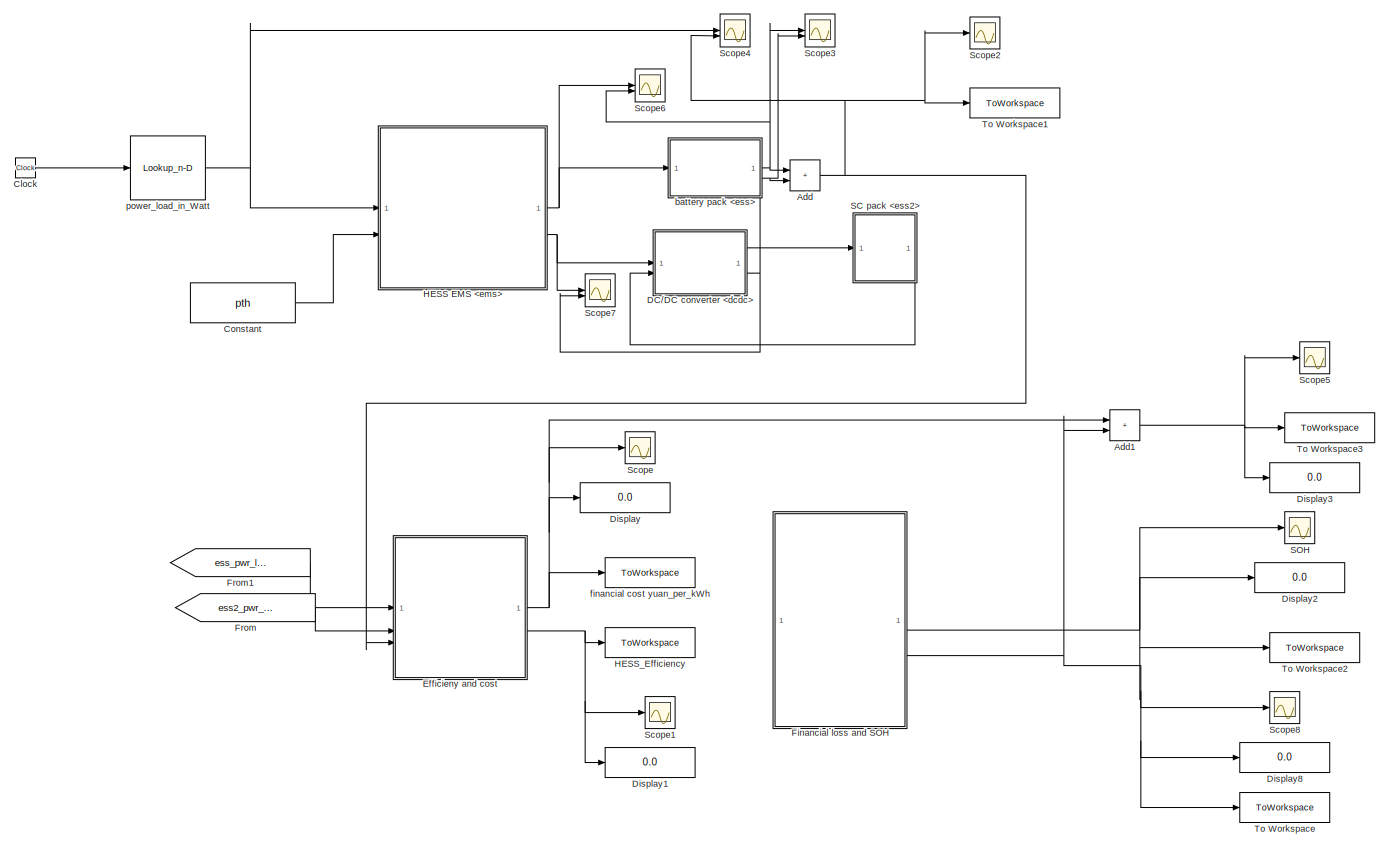
[diagram: root canvas - part 1/1, most of the canvas]
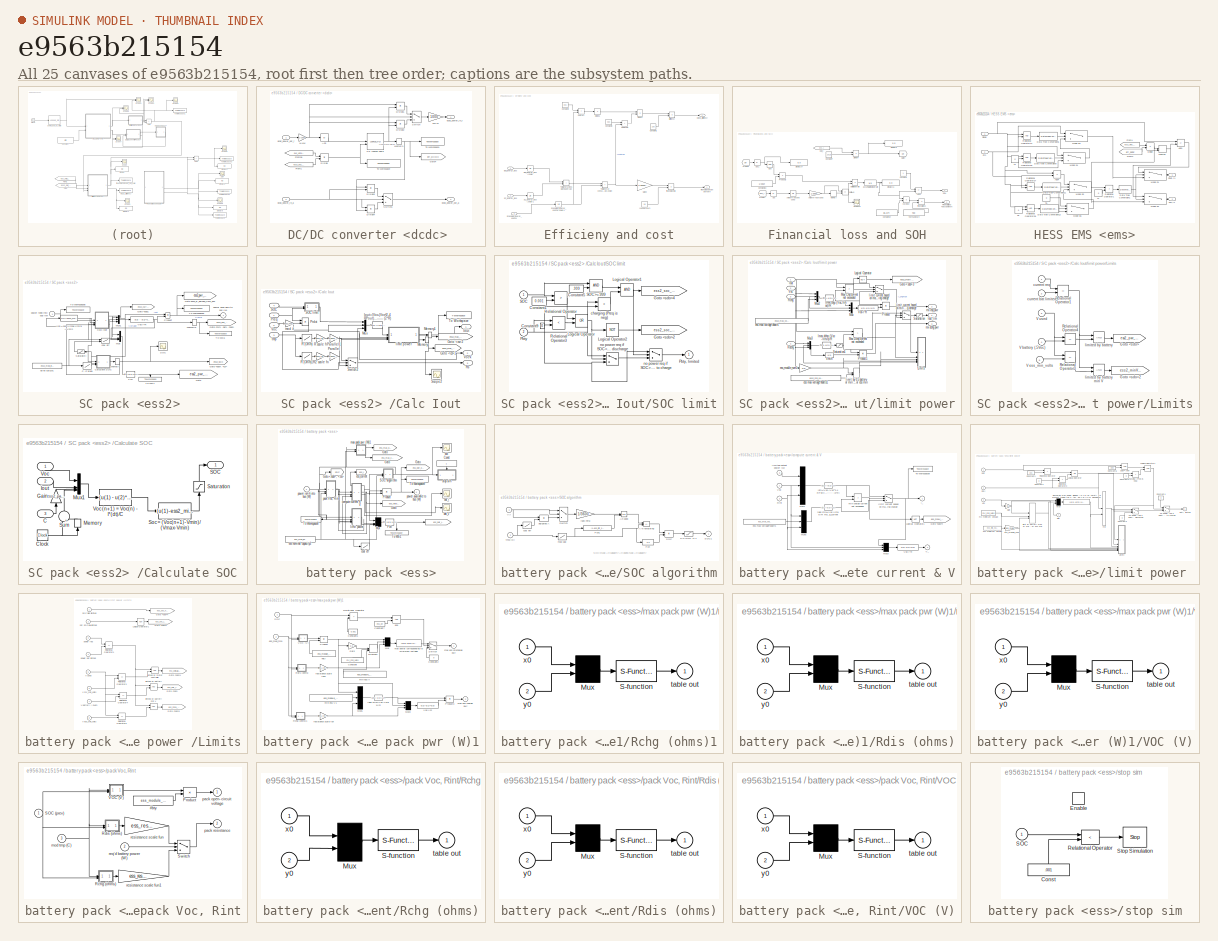
[diagram: thumbnail index - all 25 canvases of the model, root first then tree order]
MODEL slx_e9563b215154
KIND model
CONFIG AbsTol = 1e-3
CONFIG EnableMultiTasking = off
CONFIG FixedStep = 0.1
CONFIG MaxStep = 1
CONFIG MinStep = auto
CONFIG RelTol = 1e-3
CONFIG SampleTimeConstraint = Unconstrained
CONFIG SolverName = ode1
CONFIG StartTime = 0.0
CONFIG StopTime = 1369
BLOCK [Sum] Add
  IconShape = rectangular
BLOCK [Sum] Add1
  IconShape = rectangular
BLOCK [Clock] Clock
  Decimation = 1369
BLOCK [Constant] Constant
  Value = pth
BLOCK [SubSystem] DC//DC converter <dcdc> 
  AncestorBlock = lib_energy_storage/Ess Choices/DC//DC <dcdc>\nEff model \nwithout electrical presentations
  ShowPortLabels = none
BLOCK [Outport] DC//DC converter <dcdc> / dcdc_power_in_r 
BLOCK [Outport] DC//DC converter <dcdc> / dcdc_power_out_a
  Port = 2
BLOCK [Lookup_n-D] DC//DC converter <dcdc> /2-D Lookup Table
  BreakpointsForDimension1 = [0,20,40,60,80,360]
  BreakpointsForDimension2 = [0,0.2,0.4,0.6,0.8,1]
  InputPortMap = u0,u1
  RndMeth = Simplest
  Table = reshape([0.8,0.945,0.94,0.938,0.934,0.934,0.8,0.945,0.94,0.938,0.934,0.934,0.8,0.952,0.95,0.946,0.944,0.944,0.8,0.965,0.957,0.952,0.95,0.95,0.8,0.972,0.965,0.962,0.96,0.96,0.8,0.977,0.97,0.964,0.962,0.962],6,6)
BLOCK [Abs] DC//DC converter <dcdc> /Abs
  SaturateOnIntegerOverflow = off
BLOCK [Product] DC//DC converter <dcdc> /Divide
  Inputs = /*
BLOCK [Product] DC//DC converter <dcdc> /Divide1
  Inputs = */
BLOCK [Product] DC//DC converter <dcdc> /Divide2
  Inputs = **
BLOCK [Product] DC//DC converter <dcdc> /Divide3
  Inputs = **
BLOCK [Product] DC//DC converter <dcdc> /Divide4
  Inputs = */
BLOCK [From] DC//DC converter <dcdc> /From1
  GotoTag = ess2_bus_voltage
  TagVisibility = global
BLOCK [From] DC//DC converter <dcdc> /From28
  GotoTag = bus_voltage
  TagVisibility = global
BLOCK [Goto] DC//DC converter <dcdc> /Goto4
  GotoTag = Eff_DCDC
  TagVisibility = global
BLOCK [Memory] DC//DC converter <dcdc> /Memory1
  InitialCondition = 0.95
  NameLocation = top
BLOCK [Switch] DC//DC converter <dcdc> /Switch
  InputSameDT = off
  SaturateOnIntegerOverflow = off
BLOCK [Switch] DC//DC converter <dcdc> /Switch1
  InputSameDT = off
  SaturateOnIntegerOverflow = off
BLOCK [ToWorkspace] DC//DC converter <dcdc> /To Workspace
  MaxDataPoints = inf
  SampleTime = -1
  SaveFormat = Timeseries
  VariableName = ess2_to_ess_volt_ratio
BLOCK [ToWorkspace] DC//DC converter <dcdc> /To Workspace1
  MaxDataPoints = inf
  SampleTime = -1
  SaveFormat = Timeseries
  VariableName = eff_DCDC
BLOCK [Gain] DC//DC converter <dcdc> /W-kW
  Gain = 1/1000
BLOCK [Inport] DC//DC converter <dcdc> /dcdc_power_in_a
  Port = 2
BLOCK [Inport] DC//DC converter <dcdc> /dcdc_power_out_r
BLOCK [Gain] DC//DC converter <dcdc> /kW-W
  Gain = 1000
BLOCK [Display] Display
  Decimation = 1
BLOCK [Display] Display1
  Decimation = 1
BLOCK [Display] Display2
  Decimation = 1
BLOCK [Display] Display3
  Decimation = 1
BLOCK [Display] Display8
  Decimation = 1
BLOCK [SubSystem] Efficieny and cost
BLOCK [Outport] Efficieny and cost/ financial cost yuan per kWh
BLOCK [Inport] Efficieny and cost/Bat_Energy_loss 
BLOCK [Integrator] Efficieny and cost/Bat_Energy_loss (Joule)
BLOCK [Constant] Efficieny and cost/Constant1
  Value = 100
BLOCK [Constant] Efficieny and cost/Constant2
  Value = eps
BLOCK [Constant] Efficieny and cost/Constant3
  Value = eps
BLOCK [Product] Efficieny and cost/Divide1
  Inputs = /
BLOCK [Product] Efficieny and cost/Divide2
  Inputs = //
BLOCK [Product] Efficieny and cost/Efficiency
BLOCK [Gain] Efficieny and cost/Gain2
  Gain = 1/3600000
BLOCK [Outport] Efficieny and cost/HESS_Efficiency
  Port = 2
BLOCK [Inport] Efficieny and cost/SC_Energy_loss
  Port = 2
BLOCK [Integrator] Efficieny and cost/SC_Energy_loss (Joule)1
BLOCK [Inport] Efficieny and cost/Sc and Bat_Energy_useFul
  Port = 3
BLOCK [Integrator] Efficieny and cost/Sc and Bat_Energy_useFul (Joule)1
BLOCK [Sum] Efficieny and cost/Subtract
  IconShape = rectangular
BLOCK [Sum] Efficieny and cost/Subtract1
  IconShape = rectangular
BLOCK [Sum] Efficieny and cost/Total energy consumption Bat+ Supercap (Joule)
  IconShape = rectangular
BLOCK [Sum] Efficieny and cost/Total energy loss Bat+ Supercap
  IconShape = rectangular
BLOCK [Product] Efficieny and cost/financial costa
BLOCK [Constant] Efficieny and cost/yuan per kWh
  Value = 0.6
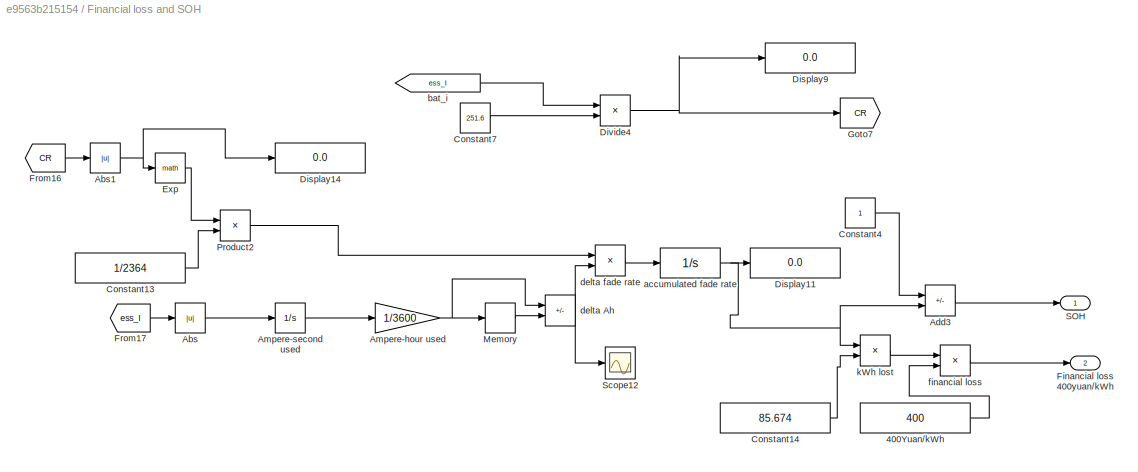
BLOCK [SubSystem] Financial loss and SOH
BLOCK [Constant] Financial loss and SOH/400Yuan//kWh
  Value = 400
BLOCK [Abs] Financial loss and SOH/Abs
  SaturateOnIntegerOverflow = off
BLOCK [Abs] Financial loss and SOH/Abs1
  SaturateOnIntegerOverflow = off
BLOCK [Sum] Financial loss and SOH/Add3
  IconShape = rectangular
  Inputs = +-
BLOCK [Gain] Financial loss and SOH/Ampere-hour used
  Gain = 1/3600
BLOCK [Integrator] Financial loss and SOH/Ampere-second used
BLOCK [Constant] Financial loss and SOH/Constant13
  Value = 1/2364
BLOCK [Constant] Financial loss and SOH/Constant14
  Value = 85.674
BLOCK [Constant] Financial loss and SOH/Constant4
BLOCK [Constant] Financial loss and SOH/Constant7
  Value = 251.6
BLOCK [Display] Financial loss and SOH/Display11
  Decimation = 1
BLOCK [Display] Financial loss and SOH/Display14
  Decimation = 1
BLOCK [Display] Financial loss and SOH/Display9
  Decimation = 1
BLOCK [Product] Financial loss and SOH/Divide4
  Inputs = */
BLOCK [Math] Financial loss and SOH/Exp
BLOCK [Outport] Financial loss and SOH/Financial loss 400yuan//kWh
  Port = 2
BLOCK [From] Financial loss and SOH/From16
  GotoTag = CR
BLOCK [From] Financial loss and SOH/From17
  GotoTag = ess_I
  TagVisibility = global
BLOCK [Goto] Financial loss and SOH/Goto7
  GotoTag = CR
BLOCK [Memory] Financial loss and SOH/Memory
BLOCK [Product] Financial loss and SOH/Product2
BLOCK [Outport] Financial loss and SOH/SOH
BLOCK [Scope] Financial loss and SOH/Scope12
  Floating = off
  NumInputPorts = 1
  ScopeSpecificationString = Simulink.scopes.TimeScopeBlockCfg('CurrentConfiguration', extmgr.ConfigurationSet(extmgr.Configuration('Core','General UI',true),extmgr.Configuration('Core','Source UI',true),extmgr.Configuration('Sources','WiredSimulink',true,'DataLoggingVariableName','ScopeData5'),extmgr.Configuration('Visuals','Time Domain',true,'SerializedDisplays',{struct('MinYLimReal','-0.00007','MaxYLimReal','0.00067','YLab...<+1531ch>
BLOCK [Integrator] Financial loss and SOH/accumulated fade rate
BLOCK [From] Financial loss and SOH/bat_i
  GotoTag = ess_I
  TagVisibility = global
BLOCK [Sum] Financial loss and SOH/delta Ah
  IconShape = rectangular
  Inputs = +-
BLOCK [Product] Financial loss and SOH/delta fade rate
BLOCK [Product] Financial loss and SOH/financial loss
BLOCK [Product] Financial loss and SOH/kWh lost
BLOCK [From] From
  GotoTag = ess2_pwr_loss_a
  TagVisibility = global
BLOCK [From] From1
  GotoTag = ess_pwr_loss_a
  TagVisibility = global
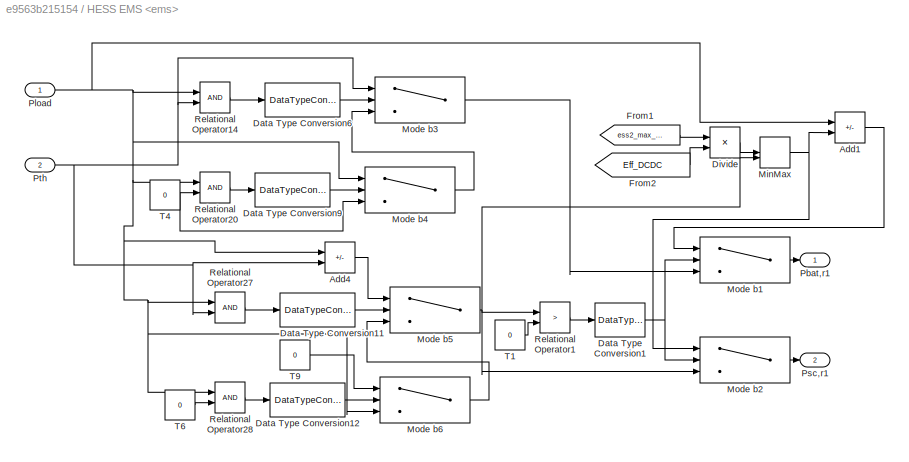
BLOCK [SubSystem] HESS EMS <ems>
  AncestorBlock = lib_controls/HESS Control Strategy\n<ems>\nLogic Threshold (BAT) CS2
  ShowPortLabels = none
BLOCK [Sum] HESS EMS <ems>/Add1
  IconShape = rectangular
  Inputs = +-
BLOCK [Sum] HESS EMS <ems>/Add4
  IconShape = rectangular
  Inputs = +-
BLOCK [DataTypeConversion] HESS EMS <ems>/Data Type Conversion1
  OutDataTypeStr = double
  RndMeth = Floor
  SaturateOnIntegerOverflow = off
BLOCK [DataTypeConversion] HESS EMS <ems>/Data Type Conversion11
  OutDataTypeStr = double
  RndMeth = Floor
  SaturateOnIntegerOverflow = off
BLOCK [DataTypeConversion] HESS EMS <ems>/Data Type Conversion12
  OutDataTypeStr = double
  RndMeth = Floor
  SaturateOnIntegerOverflow = off
BLOCK [DataTypeConversion] HESS EMS <ems>/Data Type Conversion6
  OutDataTypeStr = double
  RndMeth = Floor
  SaturateOnIntegerOverflow = off
BLOCK [DataTypeConversion] HESS EMS <ems>/Data Type Conversion9
  OutDataTypeStr = double
  RndMeth = Floor
  SaturateOnIntegerOverflow = off
BLOCK [Product] HESS EMS <ems>/Divide
  Inputs = **
BLOCK [From] HESS EMS <ems>/From1
  GotoTag = ess2_max_pwr
  TagVisibility = global
BLOCK [From] HESS EMS <ems>/From2
  GotoTag = Eff_DCDC
  TagVisibility = global
BLOCK [MinMax] HESS EMS <ems>/MinMax
  Inputs = 2
BLOCK [Switch] HESS EMS <ems>/Mode b1
  InputSameDT = off
  SaturateOnIntegerOverflow = off
  Threshold = 0.5
BLOCK [Switch] HESS EMS <ems>/Mode b2
  InputSameDT = off
  SaturateOnIntegerOverflow = off
  Threshold = 0.5
BLOCK [Switch] HESS EMS <ems>/Mode b3
  InputSameDT = off
  SaturateOnIntegerOverflow = off
  Threshold = 0.5
BLOCK [Switch] HESS EMS <ems>/Mode b4
  InputSameDT = off
  SaturateOnIntegerOverflow = off
  Threshold = 0.5
BLOCK [Switch] HESS EMS <ems>/Mode b5
  InputSameDT = off
  SaturateOnIntegerOverflow = off
  Threshold = 0.5
BLOCK [Switch] HESS EMS <ems>/Mode b6
  InputSameDT = off
  SaturateOnIntegerOverflow = off
  Threshold = 0.5
BLOCK [Outport] HESS EMS <ems>/Pbat,r1
  LockScale = on
  PortDimensions = 1
  VarSizeSig = No
BLOCK [Inport] HESS EMS <ems>/Pload
BLOCK [Outport] HESS EMS <ems>/Psc,r1
  Port = 2
  PortDimensions = 1
  VarSizeSig = No
BLOCK [Inport] HESS EMS <ems>/Pth
  Port = 2
BLOCK [RelationalOperator] HESS EMS <ems>/Relational Operator1
  InputSameDT = off
  Operator = >
  OutDataTypeStr = boolean
BLOCK [RelationalOperator] HESS EMS <ems>/Relational Operator14
  InputSameDT = off
  OutDataTypeStr = boolean
BLOCK [RelationalOperator] HESS EMS <ems>/Relational Operator20
  InputSameDT = off
  OutDataTypeStr = boolean
BLOCK [RelationalOperator] HESS EMS <ems>/Relational Operator27
  InputSameDT = off
  OutDataTypeStr = boolean
BLOCK [RelationalOperator] HESS EMS <ems>/Relational Operator28
  InputSameDT = off
  OutDataTypeStr = boolean
BLOCK [Constant] HESS EMS <ems>/T1
  Value = 0
BLOCK [Constant] HESS EMS <ems>/T4
  Value = 0
BLOCK [Constant] HESS EMS <ems>/T6
  Value = 0
BLOCK [Constant] HESS EMS <ems>/T9
  Value = 0
BLOCK [ToWorkspace] HESS_Efficiency
  FixptAsFi = on
  MaxDataPoints = inf
  SampleTime = -1
  SaveFormat = Timeseries
  VariableName = simout1
BLOCK [SubSystem] SC pack <ess2> 
  AncestorBlock = lib_energy_storage/Ess Choices/Ultracapacitor\n System\n<uc>\nCapLoss&Cost
  ShowPortLabels = none
BLOCK [Lookup] SC pack <ess2> /C (Farad)
  InputValues = ess2_tmp
  Table = ess2_cap
BLOCK [SubSystem] SC pack <ess2> /Calc Iout
BLOCK [Goto] SC pack <ess2> /Calc Iout/Goto <cs>1
  GotoTag = ess2_max_pwr
  TagVisibility = global
BLOCK [Goto] SC pack <ess2> /Calc Iout/Goto <cs>2
  GotoTag = ess2_max_chg_pwr
  TagVisibility = global
BLOCK [Outport] SC pack <ess2> /Calc Iout/Iout
BLOCK [Fcn] SC pack <ess2> /Calc Iout/Iout=(Voc-(Voc^2-4RPout)^.5) ----------------------------- (2*R)
  Expr = (u[2]-(((u[2]^2-4*u[1]*u[3])>0)*(u[2]^2-4*u[1]*u[3]))^.5)/(2*u[3])
  NameLocation = top
BLOCK [Memory] SC pack <ess2> /Calc Iout/Memory
BLOCK [Memory] SC pack <ess2> /Calc Iout/Memory1
BLOCK [Mux] SC pack <ess2> /Calc Iout/Mux
  DisplayOption = bar
  Inputs = 3
BLOCK [Gain] SC pack <ess2> /Calc Iout/Parallel
  Gain = 1/ess2_parallel_mod_num
  OutDataTypeStr = Inherit: Same as input
  ParamDataTypeStr = Inherit: Same as input
  SaturateOnIntegerOverflow = on
BLOCK [Gain] SC pack <ess2> /Calc Iout/Parallel1
  Gain = 1/ess2_parallel_mod_num
  OutDataTypeStr = Inherit: Same as input
  ParamDataTypeStr = Inherit: Same as input
  SaturateOnIntegerOverflow = on
BLOCK [Product] SC pack <ess2> /Calc Iout/Prdct
  InputSameDT = on
  Inputs = */
  OutDataTypeStr = Inherit: Same as first input
  RndMeth = Zero
  SaturateOnIntegerOverflow = on
BLOCK [Inport] SC pack <ess2> /Calc Iout/Preq
BLOCK [Lookup] SC pack <ess2> /Calc Iout/R (Ohm)
  InputValues = ess2_tmp
  Table = ess2_r
BLOCK [Lookup] SC pack <ess2> /Calc Iout/R (Ohm)1
  InputValues = ess2_tmp
  Table = ess2_r
BLOCK [Gain] SC pack <ess2> /Calc Iout/R scale fn
  Gain = ess2_res_scale_fun(ess2_res_scale_coef,ess2_module_num,ess2_cap_scale)
  OutDataTypeStr = Inherit: Same as input
  ParamDataTypeStr = Inherit: Same as input
  SaturateOnIntegerOverflow = on
BLOCK [Gain] SC pack <ess2> /Calc Iout/R2 scale fn
  Gain = ess2_res_scale_fun(ess2_res_scale_coef,ess2_module_num,ess2_cap_scale)
  OutDataTypeStr = Inherit: Same as input
  ParamDataTypeStr = Inherit: Same as input
  SaturateOnIntegerOverflow = on
BLOCK [Outport] SC pack <ess2> /Calc Iout/Rs
  Port = 3
BLOCK [Inport] SC pack <ess2> /Calc Iout/SOC
  Port = 4
BLOCK [SubSystem] SC pack <ess2> /Calc Iout/SOC limit
  ShowPortLabels = none
BLOCK [Constant] SC pack <ess2> /Calc Iout/SOC limit/Constant1
  Value = 0.001
BLOCK [Constant] SC pack <ess2> /Calc Iout/SOC limit/Constant5
  Value = .999
BLOCK [Constant] SC pack <ess2> /Calc Iout/SOC limit/Constant9
  Value = 0
BLOCK [Goto] SC pack <ess2> /Calc Iout/SOC limit/Goto <sdo>2
  GotoTag = ess2_soc_low_limited
  TagVisibility = global
BLOCK [Goto] SC pack <ess2> /Calc Iout/SOC limit/Goto <sdo>4
  GotoTag = ess2_soc_hi_limited
  TagVisibility = global
BLOCK [Logic] SC pack <ess2> /Calc Iout/SOC limit/Logical Operator
  Operator = OR
BLOCK [Logic] SC pack <ess2> /Calc Iout/SOC limit/Logical Operator1
BLOCK [Logic] SC pack <ess2> /Calc Iout/SOC limit/Logical Operator2
  Inputs = 1
  Operator = NOT
BLOCK [Inport] SC pack <ess2> /Calc Iout/SOC limit/Pbty
  Port = 2
BLOCK [Outport] SC pack <ess2> /Calc Iout/SOC limit/Pbty, limited
  InitialOutput = 0
BLOCK [RelationalOperator] SC pack <ess2> /Calc Iout/SOC limit/Relational Operator
  Operator = >
BLOCK [RelationalOperator] SC pack <ess2> /Calc Iout/SOC limit/Relational Operator3
  NameLocation = top
  Operator = <
BLOCK [Inport] SC pack <ess2> /Calc Iout/SOC limit/SOC
BLOCK [RelationalOperator] SC pack <ess2> /Calc Iout/SOC limit/SOC>=.999
BLOCK [RelationalOperator] SC pack <ess2> /Calc Iout/SOC limit/charging (Preq is neg)
  Operator = <
BLOCK [Switch] SC pack <ess2> /Calc Iout/SOC limit/no power req if SOC<0 and trying to discharge
  Threshold = eps
BLOCK [Switch] SC pack <ess2> /Calc Iout/SOC limit/no power req if SOC>.999 and trying to charge
  Threshold = eps
BLOCK [Scope] SC pack <ess2> /Calc Iout/Scope2
  Floating = off
  NumInputPorts = 1
  ScopeSpecificationString = Simulink.scopes.TimeScopeBlockCfg('CurrentConfiguration', extmgr.ConfigurationSet(extmgr.Configuration('Core','General UI',true),extmgr.Configuration('Core','Source UI',true),extmgr.Configuration('Sources','WiredSimulink',true,'DataLoggingVariableName','ScopeData8','DataLoggingSaveFormat','StructureWithTime','DataLoggingLimitDataPoints',true,'DataLoggingDecimation','1','DataLoggingDecimateData',tr...<+1853ch>
BLOCK [Switch] SC pack <ess2> /Calc Iout/Switch2
BLOCK [ToWorkspace] SC pack <ess2> /Calc Iout/To Workspace
  MaxDataPoints = inf
  SampleTime = -1
  VariableName = ess2_current
BLOCK [Inport] SC pack <ess2> /Calc Iout/Voc
  Port = 2
BLOCK [Outport] SC pack <ess2> /Calc Iout/Voc*k
  Port = 2
BLOCK [SubSystem] SC pack <ess2> /Calc Iout/limit power
BLOCK [Goto] SC pack <ess2> /Calc Iout/limit power/Goto <sdo>3
  GotoTag = ess2_maxV_limited
  TagVisibility = global
BLOCK [Fcn] SC pack <ess2> /Calc Iout/limit power/Imax chg=(Voc-Vmax)//R
  Expr = (u(1)-u(3))/u(2)
BLOCK [Fcn] SC pack <ess2> /Calc Iout/limit power/Imax dchg=(Voc -Vmin)//R
  Expr = (u(3)-u(2))/u(1)
BLOCK [Inport] SC pack <ess2> /Calc Iout/limit power/Iout
BLOCK [Outport] SC pack <ess2> /Calc Iout/limit power/Iout_lim
BLOCK [SubSystem] SC pack <ess2> /Calc Iout/limit power/Limits
  ShowPortLabels = none
BLOCK [Goto] SC pack <ess2> /Calc Iout/limit power/Limits/Goto <sdo>
  GotoTag = ess2_pwr_limited
  TagVisibility = global
BLOCK [Goto] SC pack <ess2> /Calc Iout/limit power/Limits/Goto <sdo>2
  GotoTag = ess2_minV_limited
  TagVisibility = global
BLOCK [RelationalOperator] SC pack <ess2> /Calc Iout/limit power/Limits/Relational Operator1
  Operator = ==
BLOCK [RelationalOperator] SC pack <ess2> /Calc Iout/limit power/Limits/Relational Operator4
  Operator = ==
BLOCK [RelationalOperator] SC pack <ess2> /Calc Iout/limit power/Limits/Relational Operator5
  Operator = <=
BLOCK [Inport] SC pack <ess2> /Calc Iout/limit power/Limits/V battery (.5Voc)
  Port = 4
BLOCK [Inport] SC pack <ess2> /Calc Iout/limit power/Limits/V ess_min_volts
  Port = 5
BLOCK [Inport] SC pack <ess2> /Calc Iout/limit power/Limits/V used
  Port = 3
BLOCK [Inport] SC pack <ess2> /Calc Iout/limit power/Limits/current bat limited
  Port = 2
BLOCK [Inport] SC pack <ess2> /Calc Iout/limit power/Limits/current req
BLOCK [Logic] SC pack <ess2> /Calc Iout/limit power/Limits/limited by battery
BLOCK [Logic] SC pack <ess2> /Calc Iout/limit power/Limits/limited by battery min V
BLOCK [Logic] SC pack <ess2> /Calc Iout/limit power/Logical Operator
  Operator = NOT
BLOCK [RelationalOperator] SC pack <ess2> /Calc Iout/limit power/Max Chg current not exceeded
  Operator = >
BLOCK [RelationalOperator] SC pack <ess2> /Calc Iout/limit power/Max Dchg current not exceeded
  Operator = >
BLOCK [Mux] SC pack <ess2> /Calc Iout/limit power/Mux
  DisplayOption = bar
  Inputs = 3
BLOCK [Mux] SC pack <ess2> /Calc Iout/limit power/Mux2
  DisplayOption = bar
  Inputs = 3
BLOCK [Mux] SC pack <ess2> /Calc Iout/limit power/Mux3
  DisplayOption = bar
  Inputs = 3
BLOCK [Product] SC pack <ess2> /Calc Iout/limit power/Product
  InputSameDT = on
  OutDataTypeStr = Inherit: Same as first input
  RndMeth = Zero
  SaturateOnIntegerOverflow = on
BLOCK [Product] SC pack <ess2> /Calc Iout/limit power/Product1
  InputSameDT = on
  OutDataTypeStr = Inherit: Same as first input
  RndMeth = Zero
  SaturateOnIntegerOverflow = on
BLOCK [Inport] SC pack <ess2> /Calc Iout/limit power/Rchg
  Port = 3
BLOCK [Inport] SC pack <ess2> /Calc Iout/limit power/Rdchg
  Port = 4
BLOCK [Saturate] SC pack <ess2> /Calc Iout/limit power/Saturation
  LowerLimit = -2600*ess2_parallel_mod_num
  UpperLimit = 2600*ess2_parallel_mod_num
BLOCK [Saturate] SC pack <ess2> /Calc Iout/limit power/Saturation1
  LowerLimit = 0
  UpperLimit = inf
BLOCK [Fcn] SC pack <ess2> /Calc Iout/limit power/Vmin
  Expr = u(2)
BLOCK [Inport] SC pack <ess2> /Calc Iout/limit power/Voc
  Port = 2
BLOCK [Fcn] SC pack <ess2> /Calc Iout/limit power/Voc-I*R
  Expr = u(3)-u(1)*u(2)
BLOCK [Constant] SC pack <ess2> /Calc Iout/limit power/ess max voltage*#batts
  Value = ess2_max_volts*ess2_module_num
BLOCK [Constant] SC pack <ess2> /Calc Iout/limit power/ess max voltage*#batts1
  Value = ess2_min_volts*ess2_module_num
BLOCK [Gain] SC pack <ess2> /Calc Iout/limit power/ess_module_num1
  Gain = 0.5
  OutDataTypeStr = Inherit: Same as input
  ParamDataTypeStr = Inherit: Same as input
  SaturateOnIntegerOverflow = on
BLOCK [MinMax] SC pack <ess2> /Calc Iout/limit power/limit by 0.5 battery or min mc voltage or ess min
  Function = max
  InputSameDT = on
  Inputs = 2
  SaturateOnIntegerOverflow = on
BLOCK [Switch] SC pack <ess2> /Calc Iout/limit power/limit current based on max voltage during charge
  Threshold = 0.5
BLOCK [Switch] SC pack <ess2> /Calc Iout/limit power/limit current based on min voltage during dcharge
  Threshold = 0.5
BLOCK [Outport] SC pack <ess2> /Calc Iout/limit power/mx chg pwr
  Port = 2
BLOCK [Outport] SC pack <ess2> /Calc Iout/limit power/mx dchg pwr
  Port = 3
BLOCK [Gain] SC pack <ess2> /Calc Iout/mod #
  Gain = ess2_module_num
  OutDataTypeStr = Inherit: Same as input
  ParamDataTypeStr = Inherit: Same as input
  SaturateOnIntegerOverflow = on
BLOCK [Inport] SC pack <ess2> /Calc Iout/tmp
  Port = 3
BLOCK [SubSystem] SC pack <ess2> /Calculate SOC
BLOCK [Inport] SC pack <ess2> /Calculate SOC/C
  Port = 3
BLOCK [Clock] SC pack <ess2> /Calculate SOC/Clock
BLOCK [Gain] SC pack <ess2> /Calculate SOC/Gain
  Gain = ess2_parallel_mod_num
  NameLocation = left
  OutDataTypeStr = Inherit: Same as input
  ParamDataTypeStr = Inherit: Same as input
  SaturateOnIntegerOverflow = on
BLOCK [Inport] SC pack <ess2> /Calculate SOC/Iout
  Port = 2
BLOCK [Memory] SC pack <ess2> /Calculate SOC/Memory
  NameLocation = right
BLOCK [Mux] SC pack <ess2> /Calculate SOC/Mux1
  DisplayOption = bar
BLOCK [Outport] SC pack <ess2> /Calculate SOC/SOC
BLOCK [Saturate] SC pack <ess2> /Calculate SOC/Saturation
  LowerLimit = 0
  NameLocation = left
  UpperLimit = 1
BLOCK [Fcn] SC pack <ess2> /Calculate SOC/Soc = (Voc(n+1)-Vmin)//(Vmax-Vmin)
  Expr = (u(1)-ess2_min_volts)/(ess2_max_volts-ess2_min_volts)
BLOCK [Sum] SC pack <ess2> /Calculate SOC/Sum
  InputSameDT = on
  Inputs = |+-
  NameLocation = right
  OutDataTypeStr = Inherit: Same as first input
  SaturateOnIntegerOverflow = on
BLOCK [Inport] SC pack <ess2> /Calculate SOC/Voc
  NameLocation = right
BLOCK [Fcn] SC pack <ess2> /Calculate SOC/Voc (n+1) = Voc(n) - I*(dt)//C
  Expr = (u(1) - u(2)*u(4)/u(3))
BLOCK [Fcn] SC pack <ess2> /Fcn
  Expr = u[1]*u[1]*u[2]/ess2_parallel_mod_num*(u[1]>=0)+u[1]*u[1]*u(4)*u(4)*u[2]/ess2_parallel_mod_num*(u[1]<0)-u[1]*u[3]*(1-u(4))*(u[1]<0)
BLOCK [Goto] SC pack <ess2> /Goto
  GotoTag = ess2_pwr_loss_a
  TagVisibility = global
BLOCK [Goto] SC pack <ess2> /Goto <mc>, <gc>, <sdo>
  GotoTag = ess2_bus_voltage
  TagVisibility = global
BLOCK [Goto] SC pack <ess2> /Goto <sdo1
  GotoTag = ess2_current
  TagVisibility = global
BLOCK [Goto] SC pack <ess2> /Goto <sdo>, <cs>
  GotoTag = ess2_SOC
  TagVisibility = global
BLOCK [Goto] SC pack <ess2> /Goto ess2_E_gained_from_ess
  GotoTag = ess2_pwr_out_a
  TagVisibility = global
BLOCK [Memory] SC pack <ess2> /Memory
  InitialCondition = ess2_init_soc
BLOCK [Memory] SC pack <ess2> /Memory3
  InitialCondition = (ess2_init_soc*(ess2_max_volts-ess2_min_volts) +ess2_min_volts)*ess2_module_num
BLOCK [Mux] SC pack <ess2> /Mux
  DisplayOption = bar
BLOCK [Mux] SC pack <ess2> /Mux1
  DisplayOption = bar
  Inputs = 3
BLOCK [Product] SC pack <ess2> /Product
  InputSameDT = on
  OutDataTypeStr = Inherit: Same as first input
  RndMeth = Zero
  SaturateOnIntegerOverflow = on
BLOCK [Scope] SC pack <ess2> /SOC
  Floating = off
  NumInputPorts = 1
  ScopeSpecificationString = Simulink.scopes.TimeScopeBlockCfg('CurrentConfiguration', extmgr.ConfigurationSet(extmgr.Configuration('Core','General UI',true),extmgr.Configuration('Core','Source UI',true),extmgr.Configuration('Sources','WiredSimulink',true,'DataLoggingVariableName','ScopeData4'),extmgr.Configuration('Visuals','Time Domain',true,'SerializedDisplays',{struct('MinYLimReal','0.06706','MaxYLimReal','1.10366','YLabe...<+1508ch>
BLOCK [Saturate] SC pack <ess2> /Saturate I
  LowerLimit = -2600
  UpperLimit = 2600
BLOCK [ToWorkspace] SC pack <ess2> /To WS1
  MaxDataPoints = inf
  NameLocation = left
  VariableName = ess2_pwr_loss_a
BLOCK [ToWorkspace] SC pack <ess2> /To WS5
  MaxDataPoints = inf
  NameLocation = top
  VariableName = ess2_voltage
BLOCK [ToWorkspace] SC pack <ess2> /To Workspace8
  MaxDataPoints = inf
  NameLocation = top
  SampleTime = -1
  VariableName = ess2_pwr_out_r
BLOCK [ToWorkspace] SC pack <ess2> /To Workspace9
  MaxDataPoints = inf
  NameLocation = top
  SampleTime = -1
  VariableName = ess2_pwr_out_a
BLOCK [Fcn] SC pack <ess2> /Voc = soc*(Vmax-Vmin) + Vmin
  Expr = u(1)*(ess2_max_volts-ess2_min_volts) +ess2_min_volts
BLOCK [Fcn] SC pack <ess2> /Voc-I*R
  Expr = u[2] - u[1]*u[3]
BLOCK [Lookup2D] SC pack <ess2> /coul eff
  ColumnIndex = ess2_i
  RowIndex = ess2_tmp
  Table = ess2_coulombic_eff
BLOCK [Constant] SC pack <ess2> /do ex calcs?1
  Value = ess2_mod_init_tmp
BLOCK [Outport] SC pack <ess2> /power available to bus (W)
  InitialOutput = 0
  NameLocation = top
BLOCK [Inport] SC pack <ess2> /power req'd into bus (W)
  NameLocation = top
BLOCK [Scope] SOH
  Floating = off
  NumInputPorts = 1
  ScopeSpecificationString = Simulink.scopes.TimeScopeBlockCfg('CurrentConfiguration', extmgr.ConfigurationSet(extmgr.Configuration('Core','General UI',true),extmgr.Configuration('Core','Source UI',true),extmgr.Configuration('Sources','WiredSimulink',true,'DataLoggingVariableName','ScopeData2'),extmgr.Configuration('Visuals','Time Domain',true,'SerializedDisplays',{struct('MinYLimReal','0.99976','MaxYLimReal','1.00003','YLabe...<+1545ch>
BLOCK [Scope] Scope
  Floating = off
  NumInputPorts = 1
  ScopeSpecificationString = Simulink.scopes.TimeScopeBlockCfg('CurrentConfiguration', extmgr.ConfigurationSet(extmgr.Configuration('Core','General UI',true),extmgr.Configuration('Core','Source UI',true),extmgr.Configuration('Sources','WiredSimulink',true,'DataLoggingVariableName','ScopeData3'),extmgr.Configuration('Visuals','Time Domain',true,'SerializedDisplays',{struct('MinYLimReal','-0.17597','MaxYLimReal','1.5837','YLabe...<+1464ch>
BLOCK [Scope] Scope1
  Floating = off
  NumInputPorts = 1
  ScopeSpecificationString = Simulink.scopes.TimeScopeBlockCfg('CurrentConfiguration', extmgr.ConfigurationSet(extmgr.Configuration('Core','General UI',true),extmgr.Configuration('Core','Source UI',true),extmgr.Configuration('Sources','WiredSimulink',true,'DataLoggingVariableName','ScopeData4'),extmgr.Configuration('Visuals','Time Domain',true,'SerializedDisplays',{struct('MinYLimReal','99.28182','MaxYLimReal','100.0798','YLa...<+1530ch>
BLOCK [Scope] Scope2
  Floating = off
  NumInputPorts = 1
  ScopeSpecificationString = Simulink.scopes.TimeScopeBlockCfg('CurrentConfiguration', extmgr.ConfigurationSet(extmgr.Configuration('Core','General UI',true),extmgr.Configuration('Core','Source UI',true),extmgr.Configuration('Sources','WiredSimulink',true,'DataLoggingVariableName','ScopeData1'),extmgr.Configuration('Visuals','Time Domain',true,'SerializedDisplays',{struct('MinYLimReal','-28183.0117','MaxYLimReal','69403.77368...<+1533ch>
BLOCK [Scope] Scope3
  Floating = off
  NumInputPorts = 2
  ScopeSpecificationString = Simulink.scopes.TimeScopeBlockCfg('CurrentConfiguration', extmgr.ConfigurationSet(extmgr.Configuration('Core','General UI',true),extmgr.Configuration('Core','Source UI',true),extmgr.Configuration('Sources','WiredSimulink',true,'DataLoggingVariableName','ScopeData7'),extmgr.Configuration('Visuals','Time Domain',true,'SerializedDisplays',{struct('MinYLimReal','-26308.0117','MaxYLimReal','52528.77368...<+2081ch>
BLOCK [Scope] Scope4
  Floating = off
  NumInputPorts = 2
  ScopeSpecificationString = Simulink.scopes.TimeScopeBlockCfg('CurrentConfiguration', extmgr.ConfigurationSet(extmgr.Configuration('Core','General UI',true),extmgr.Configuration('Core','Source UI',true),extmgr.Configuration('Sources','WiredSimulink',true,'DataLoggingVariableName','ScopeData1'),extmgr.Configuration('Visuals','Time Domain',true,'SerializedDisplays',{struct('MinYLimReal','-28182.1432','MaxYLimReal','69405.13622...<+1616ch>
BLOCK [Scope] Scope5
  Floating = off
  NumInputPorts = 1
  ScopeSpecificationString = Simulink.scopes.TimeScopeBlockCfg('CurrentConfiguration', extmgr.ConfigurationSet(extmgr.Configuration('Core','General UI',true),extmgr.Configuration('Core','Source UI',true),extmgr.Configuration('Sources','WiredSimulink',true,'DataLoggingVariableName','ScopeData1'),extmgr.Configuration('Visuals','Time Domain',true,'SerializedDisplays',{struct('MinYLimReal','-1.34096','MaxYLimReal','12.06863','YLa...<+1456ch>
BLOCK [Scope] Scope6
  Floating = off
  NumInputPorts = 2
  ScopeSpecificationString = Simulink.scopes.TimeScopeBlockCfg('CurrentConfiguration', extmgr.ConfigurationSet(extmgr.Configuration('Core','General UI',true),extmgr.Configuration('Core','Source UI',true),extmgr.Configuration('Sources','WiredSimulink',true,'DataLoggingVariableName','ScopeData1'),extmgr.Configuration('Visuals','Time Domain',true,'SerializedDisplays',{struct('MinYLimReal','-1875.00000','MaxYLimReal','16875.00000...<+2549ch>
BLOCK [Scope] Scope7
  Floating = off
  NumInputPorts = 2
  ScopeSpecificationString = Simulink.scopes.TimeScopeBlockCfg('CurrentConfiguration', extmgr.ConfigurationSet(extmgr.Configuration('Core','General UI',true),extmgr.Configuration('Core','Source UI',true),extmgr.Configuration('Sources','WiredSimulink',true,'DataLoggingVariableName','ScopeData2'),extmgr.Configuration('Visuals','Time Domain',true,'SerializedDisplays',{struct('MinYLimReal','-26308.0117','MaxYLimReal','52528.77368...<+2539ch>
BLOCK [Scope] Scope8
  Floating = off
  NumInputPorts = 1
  ScopeSpecificationString = Simulink.scopes.TimeScopeBlockCfg('CurrentConfiguration', extmgr.ConfigurationSet(extmgr.Configuration('Core','General UI',true),extmgr.Configuration('Core','Source UI',true),extmgr.Configuration('Sources','WiredSimulink',true,'DataLoggingVariableName','ScopeData6'),extmgr.Configuration('Visuals','Time Domain',true,'SerializedDisplays',{struct('MinYLimReal','-0.00449','MaxYLimReal','0.04041','YLab...<+1574ch>
BLOCK [ToWorkspace] To Workspace
  FixptAsFi = on
  MaxDataPoints = inf
  SampleTime = -1
  SaveFormat = Timeseries
  VariableName = Financialloss_simout2
BLOCK [ToWorkspace] To Workspace1
  MaxDataPoints = inf
  SampleTime = -1
  SaveFormat = Timeseries
  VariableName = Total_power_HESS_achive
BLOCK [ToWorkspace] To Workspace2
  FixptAsFi = on
  MaxDataPoints = inf
  SampleTime = -1
  SaveFormat = Timeseries
  VariableName = SOH_simout3
BLOCK [ToWorkspace] To Workspace3
  FixptAsFi = on
  MaxDataPoints = inf
  SampleTime = -1
  SaveFormat = Timeseries
  VariableName = HESS_total_cost
BLOCK [SubSystem] battery pack <ess>
  AncestorBlock = lib_energy_storage/Ess Choices/energy\nstorage <ess>\nCapLoss Modified
  ShowPortLabels = none
BLOCK [Goto] battery pack <ess>/ 
  GotoTag = ess_pwr_loss_a
  TagVisibility = global
BLOCK [Scope] battery pack <ess>/ bat_i
  Floating = off
  NumInputPorts = 1
  ScopeSpecificationString = Simulink.scopes.TimeScopeBlockCfg('CurrentConfiguration', extmgr.ConfigurationSet(extmgr.Configuration('Core','General UI',true),extmgr.Configuration('Core','Source UI',true),extmgr.Configuration('Sources','WiredSimulink',true,'DataLoggingVariableName','ScopeData2'),extmgr.Configuration('Visuals','Time Domain',true,'SerializedDisplays',{struct('MinYLimReal','-3.36547','MaxYLimReal','30.28921','YLa...<+1498ch>
BLOCK [Scope] battery pack <ess>/ bat_v
  Floating = off
  NumInputPorts = 1
  ScopeSpecificationString = Simulink.scopes.TimeScopeBlockCfg('CurrentConfiguration', extmgr.ConfigurationSet(extmgr.Configuration('Core','General UI',true),extmgr.Configuration('Core','Source UI',true),extmgr.Configuration('Sources','WiredSimulink',true,'DataLoggingVariableName','ScopeData3'),extmgr.Configuration('Visuals','Time Domain',true,'SerializedDisplays',{struct('MinYLimReal','370.96678','MaxYLimReal','375.49258','Y...<+1508ch>
BLOCK [Constant] battery pack <ess>/Const
  NameLocation = right
BLOCK [Fcn] battery pack <ess>/Fcn
  Expr = u[1]*u[1]*u[2]*(u[1]>=0)+u[1]*u[1]*u[2]*u(4)*u(4)*(u[1]<0)-u[1]*u[3]*(1-u(4))*(u[1]<0)
BLOCK [Goto] battery pack <ess>/Goto
  GotoTag = ess_pwr_out_a
  TagVisibility = global
BLOCK [Goto] battery pack <ess>/Goto 
  GotoTag = ess_max_chg_pwr
  TagVisibility = global
BLOCK [Goto] battery pack <ess>/Goto  
  GotoTag = bus_voltage
  TagVisibility = global
BLOCK [Goto] battery pack <ess>/Goto   
  GotoTag = ess_max_pwr
  TagVisibility = global
BLOCK [Goto] battery pack <ess>/Goto <sdo>, <cs>
  GotoTag = SOC
  TagVisibility = global
BLOCK [Mux] battery pack <ess>/Mux
BLOCK [Product] battery pack <ess>/Product
  InputSameDT = on
  OutDataTypeStr = Inherit: Same as first input
  RndMeth = Zero
  SaturateOnIntegerOverflow = on
BLOCK [SubSystem] battery pack <ess>/SOC algorithm
  ShowPortLabels = none
BLOCK [Inport] battery pack <ess>/SOC algorithm/(A)
BLOCK [Gain] battery pack <ess>/SOC algorithm/(sec->hrs)
  Gain = 1/3600
  OutDataTypeStr = Inherit: Same as input
  ParamDataTypeStr = Inherit: Same as input
  SaturateOnIntegerOverflow = on
BLOCK [Saturate] battery pack <ess>/SOC algorithm/0 <= SOC <= 1
  LowerLimit = 0
  UpperLimit = 1
BLOCK [Sum] battery pack <ess>/SOC algorithm/A-h remaining
  IconShape = rectangular
  InputSameDT = on
  Inputs = -+
  OutDataTypeStr = Inherit: Same as first input
  SaturateOnIntegerOverflow = on
BLOCK [Integrator] battery pack <ess>/SOC algorithm/Ah used
  InitialCondition = (1-ess_init_soc)*ess_max_ah_cap
  InitialConditionSource = external
BLOCK [Fcn] battery pack <ess>/SOC algorithm/Fcn
  Expr = 1/u
BLOCK [Fcn] battery pack <ess>/SOC algorithm/Fcn1
  Expr = (1-ess_init_soc)*u[1]
BLOCK [Product] battery pack <ess>/SOC algorithm/SOC
  InputSameDT = on
  OutDataTypeStr = Inherit: Same as first input
  RndMeth = Zero
  SaturateOnIntegerOverflow = on
BLOCK [Outport] battery pack <ess>/SOC algorithm/SOC1
  InitialOutput = 0
BLOCK [Switch] battery pack <ess>/SOC algorithm/Switch
BLOCK [Product] battery pack <ess>/SOC algorithm/adjusted A
  InputSameDT = on
  OutDataTypeStr = Inherit: Same as first input
  RndMeth = Zero
  SaturateOnIntegerOverflow = on
BLOCK [Lookup] battery pack <ess>/SOC algorithm/coul eff
  InputValues = ess_tmp
  Table = ess_coulombic_eff
BLOCK [Lookup] battery pack <ess>/SOC algorithm/max cap
  InputValues = ess_tmp
  Table = ess_max_ah_cap*ess_cap_scale
BLOCK [Inport] battery pack <ess>/SOC algorithm/tmp (C)
  Port = 2
BLOCK [ToWorkspace] battery pack <ess>/To WS1
  MaxDataPoints = inf
  NameLocation = left
  VariableName = ess_pwr_loss_a
BLOCK [ToWorkspace] battery pack <ess>/To Workspace8
  MaxDataPoints = inf
  SampleTime = -1
  VariableName = ess_pwr_out_r
BLOCK [ToWorkspace] battery pack <ess>/To Workspace9
  MaxDataPoints = inf
  SampleTime = -1
  VariableName = ess_pwr_out_a
BLOCK [SubSystem] battery pack <ess>/compute current & V
  ShowPortLabels = none
BLOCK [Goto] battery pack <ess>/compute current & V/Goto <sdo>4
  GotoTag = ess_maxV_limited
  TagVisibility = global
BLOCK [Outport] battery pack <ess>/compute current & V/I_
  InitialOutput = 0
BLOCK [Fcn] battery pack <ess>/compute current & V/Ibty=(Voc-(Voc^2-4RPbty)^.5) ----------------------------- (2*R)
  Expr = (u[2]-(u[2]^2-4*u[1]*u[3])^.5)/(2*u[3])
BLOCK [Logic] battery pack <ess>/compute current & V/Logical Operator1
  Inputs = 1
  Operator = NOT
BLOCK [Mux] battery pack <ess>/compute current & V/Mux3
  Inputs = 3
BLOCK [Mux] battery pack <ess>/compute current & V/Mux4
  Inputs = 3
BLOCK [Mux] battery pack <ess>/compute current & V/Mux5
  Inputs = 3
BLOCK [Inport] battery pack <ess>/compute current & V/Rint
  Port = 2
BLOCK [ToWorkspace] battery pack <ess>/compute current & V/To Workspace9
  MaxDataPoints = inf
  SampleTime = -1
  VariableName = ess_current
BLOCK [Outport] battery pack <ess>/compute current & V/V_
  InitialOutput = 0
  Port = 2
BLOCK [Inport] battery pack <ess>/compute current & V/Voc
BLOCK [Fcn] battery pack <ess>/compute current & V/Voc-I*R
  Expr = u[2]-u[1]*u[3]
BLOCK [Constant] battery pack <ess>/compute current & V/ess max voltage*#batts
  Value = ess_max_volts*ess_module_num
BLOCK [Fcn] battery pack <ess>/compute current & V/iabs min=(Voc-Vmax)//R max_charging_current
  Expr = (u(1)-u(2))/u(3)
BLOCK [Switch] battery pack <ess>/compute current & V/limit current based on max voltage during charge
  Threshold = eps
BLOCK [Inport] battery pack <ess>/compute current & V/limited output power (W)
  Port = 3
BLOCK [RelationalOperator] battery pack <ess>/compute current & V/min charge current not exceeded
  Operator = >
BLOCK [Lookup] battery pack <ess>/coul eff
  InputValues = ess_tmp
  Table = ess_coulombic_eff
BLOCK [Constant] battery pack <ess>/ess nominal capacity2
  Value = ess_mod_init_tmp
BLOCK [Goto] battery pack <ess>/ess_current
  GotoTag = ess_I
  TagVisibility = global
BLOCK [SubSystem] battery pack <ess>/limit power 
  ShowPortLabels = none
BLOCK [Constant] battery pack <ess>/limit power /Constant1
  Value = eps
BLOCK [Constant] battery pack <ess>/limit power /Constant2
  Value = 0
BLOCK [Constant] battery pack <ess>/limit power /Constant3
  Value = 0
BLOCK [Constant] battery pack <ess>/limit power /Constant4
  NameLocation = left
  Value = 0
BLOCK [Constant] battery pack <ess>/limit power /Constant5
  Value = .999
BLOCK [Constant] battery pack <ess>/limit power /Constant6
  Value = 0
BLOCK [Gain] battery pack <ess>/limit power /Gain
  Gain = 0.5
  OutDataTypeStr = Inherit: Same as input
  ParamDataTypeStr = Inherit: Same as input
  SaturateOnIntegerOverflow = on
BLOCK [SubSystem] battery pack <ess>/limit power /Limits
  ShowPortLabels = none
BLOCK [Goto] battery pack <ess>/limit power /Limits/Goto <sdo>
  GotoTag = ess_pwr_limited
  TagVisibility = global
BLOCK [Goto] battery pack <ess>/limit power /Limits/Goto <sdo>1
  GotoTag = mc_voltage_limited
  TagVisibility = global
BLOCK [Goto] battery pack <ess>/limit power /Limits/Goto <sdo>2
  GotoTag = ess_soc_low_limited
  TagVisibility = global
BLOCK [Goto] battery pack <ess>/limit power /Limits/Goto <sdo>3
  GotoTag = ess_minV_limited
  TagVisibility = global
BLOCK [Goto] battery pack <ess>/limit power /Limits/Goto <sdo>4
  GotoTag = ess_soc_hi_limited
  TagVisibility = global
BLOCK [Logic] battery pack <ess>/limit power /Limits/Logical Operator1
  Inputs = 1
  Operator = NOT
BLOCK [RelationalOperator] battery pack <ess>/limit power /Limits/Relational Operator1
  Operator = ==
BLOCK [RelationalOperator] battery pack <ess>/limit power /Limits/Relational Operator3
  Operator = ==
BLOCK [RelationalOperator] battery pack <ess>/limit power /Limits/Relational Operator4
  Operator = ==
BLOCK [RelationalOperator] battery pack <ess>/limit power /Limits/Relational Operator5
  Operator = ==
BLOCK [Inport] battery pack <ess>/limit power /Limits/SOC high limited
BLOCK [Inport] battery pack <ess>/limit power /Limits/V battery (.5Voc)
  Port = 7
BLOCK [Inport] battery pack <ess>/limit power /Limits/V ess_min_volts
  Port = 8
BLOCK [Inport] battery pack <ess>/limit power /Limits/V mc_min_volts
  Port = 6
BLOCK [Inport] battery pack <ess>/limit power /Limits/V used
  Port = 5
BLOCK [Logic] battery pack <ess>/limit power /Limits/limited by battery
BLOCK [Logic] battery pack <ess>/limit power /Limits/limited by battery min V
BLOCK [Logic] battery pack <ess>/limit power /Limits/limited by motor controller
BLOCK [Inport] battery pack <ess>/limit power /Limits/not SOC low limited
  Port = 2
BLOCK [Inport] battery pack <ess>/limit power /Limits/power bat limited
  Port = 4
BLOCK [Inport] battery pack <ess>/limit power /Limits/power req
  Port = 3
BLOCK [Logic] battery pack <ess>/limit power /Logical Operator
  Operator = OR
BLOCK [Logic] battery pack <ess>/limit power /Logical Operator1
BLOCK [Mux] battery pack <ess>/limit power /Mux
  Inputs = 3
BLOCK [Inport] battery pack <ess>/limit power /Pbty
  Port = 2
BLOCK [Outport] battery pack <ess>/limit power /Pbty, limited
  InitialOutput = 0
BLOCK [RelationalOperator] battery pack <ess>/limit power /Relational Operator
  Operator = >
BLOCK [RelationalOperator] battery pack <ess>/limit power /Relational Operator3
  NameLocation = top
  Operator = <
BLOCK [Inport] battery pack <ess>/limit power /Rint
  Port = 4
BLOCK [Inport] battery pack <ess>/limit power /SOC
BLOCK [RelationalOperator] battery pack <ess>/limit power /SOC>=.999
BLOCK [Inport] battery pack <ess>/limit power /Voc
  Port = 3
BLOCK [RelationalOperator] battery pack <ess>/limit power /charging (Preq is neg)
  Operator = <
BLOCK [Fcn] battery pack <ess>/limit power /discharge max power allowed (-0.1 is for safety, to prevent taking the square of a tiny -ive # in I=I(P) elsewhere)
  Expr = (u[1]-u[2])*u[2]/u[3]-0.1
BLOCK [Constant] battery pack <ess>/limit power /ess minimum voltage
  Value = ess_min_volts
BLOCK [Gain] battery pack <ess>/limit power /ess_module_num
  Gain = ess_module_num
  OutDataTypeStr = Inherit: Same as input
  ParamDataTypeStr = Inherit: Same as input
  SaturateOnIntegerOverflow = on
BLOCK [MinMax] battery pack <ess>/limit power /limit by battery max or min mc voltage or ess min
  Function = max
  InputSameDT = on
  Inputs = 3
  SaturateOnIntegerOverflow = on
BLOCK [Constant] battery pack <ess>/limit power /mc minimum voltage
  Value = mc_min_volts
BLOCK [MinMax] battery pack <ess>/limit power /min
  InputSameDT = on
  Inputs = 2
  SaturateOnIntegerOverflow = on
BLOCK [Switch] battery pack <ess>/limit power /no power req if SOC<0 and trying to discharge
  Threshold = eps
BLOCK [Switch] battery pack <ess>/limit power /no power req if SOC>.999 and trying to charge
  Threshold = eps
BLOCK [SubSystem] battery pack <ess>/max pack pwr (W)1
  ShowPortLabels = none
BLOCK [Constant] battery pack <ess>/max pack pwr (W)1/#bty
  Value = ess_module_num
BLOCK [Constant] battery pack <ess>/max pack pwr (W)1/Constant
  NameLocation = right
  Value = mc_min_volts
BLOCK [Constant] battery pack <ess>/max pack pwr (W)1/Constant1
  Value = 0.001
BLOCK [Constant] battery pack <ess>/max pack pwr (W)1/Constant2
  Value = 0
BLOCK [Constant] battery pack <ess>/max pack pwr (W)1/Constant7
  Value = ess_on
BLOCK [Gain] battery pack <ess>/max pack pwr (W)1/Gain
  Gain = 0.5
  OutDataTypeStr = Inherit: Same as input
  ParamDataTypeStr = Inherit: Same as input
  SaturateOnIntegerOverflow = on
BLOCK [MinMax] battery pack <ess>/max pack pwr (W)1/MinMax1
  Function = max
  InputSameDT = on
  Inputs = 3
  SaturateOnIntegerOverflow = on
BLOCK [Mux] battery pack <ess>/max pack pwr (W)1/Mux
  Inputs = 3
BLOCK [Mux] battery pack <ess>/max pack pwr (W)1/Mux3
  Inputs = 3
BLOCK [Mux] battery pack <ess>/max pack pwr (W)1/Mux5
  Inputs = 3
BLOCK [Product] battery pack <ess>/max pack pwr (W)1/Product
  InputSameDT = on
  OutDataTypeStr = Inherit: Same as first input
  RndMeth = Zero
  SaturateOnIntegerOverflow = on
BLOCK [Product] battery pack <ess>/max pack pwr (W)1/Product3
  InputSameDT = on
  OutDataTypeStr = Inherit: Same as first input
  RndMeth = Zero
  SaturateOnIntegerOverflow = on
BLOCK [SubSystem] battery pack <ess>/max pack pwr (W)1/Rchg (ohms)1
  ShowPortLabels = none
BLOCK [Mux] battery pack <ess>/max pack pwr (W)1/Rchg (ohms)1/Mux
  Inputs = 2
BLOCK [S-Function] battery pack <ess>/max pack pwr (W)1/Rchg (ohms)1/S-function
  EnableBusSupport = off
  FunctionName = sftable2
  Parameters = xindex, yindex, table
  SFcnIsStateOwnerBlock = off
  SFunctionDeploymentMode = off
BLOCK [Outport] battery pack <ess>/max pack pwr (W)1/Rchg (ohms)1/table out
  InitialOutput = 0
BLOCK [Inport] battery pack <ess>/max pack pwr (W)1/Rchg (ohms)1/x0
BLOCK [Inport] battery pack <ess>/max pack pwr (W)1/Rchg (ohms)1/y0
  Port = 2
BLOCK [SubSystem] battery pack <ess>/max pack pwr (W)1/Rdis (ohms)
  ShowPortLabels = none
BLOCK [Mux] battery pack <ess>/max pack pwr (W)1/Rdis (ohms)/Mux
  Inputs = 2
BLOCK [S-Function] battery pack <ess>/max pack pwr (W)1/Rdis (ohms)/S-function
  EnableBusSupport = off
  FunctionName = sftable2
  Parameters = xindex, yindex, table
  SFcnIsStateOwnerBlock = off
  SFunctionDeploymentMode = off
BLOCK [Outport] battery pack <ess>/max pack pwr (W)1/Rdis (ohms)/table out
  InitialOutput = 0
BLOCK [Inport] battery pack <ess>/max pack pwr (W)1/Rdis (ohms)/x0
BLOCK [Inport] battery pack <ess>/max pack pwr (W)1/Rdis (ohms)/y0
  Port = 2
BLOCK [RelationalOperator] battery pack <ess>/max pack pwr (W)1/Relational Operator
  Operator = >
BLOCK [Inport] battery pack <ess>/max pack pwr (W)1/SOC
BLOCK [Switch] battery pack <ess>/max pack pwr (W)1/Switch
  Threshold = eps
BLOCK [SubSystem] battery pack <ess>/max pack pwr (W)1/VOC (V)
  ShowPortLabels = none
BLOCK [Mux] battery pack <ess>/max pack pwr (W)1/VOC (V)/Mux
  Inputs = 2
BLOCK [S-Function] battery pack <ess>/max pack pwr (W)1/VOC (V)/S-function
  EnableBusSupport = off
  FunctionName = sftable2
  Parameters = xindex, yindex, table
  SFcnIsStateOwnerBlock = off
  SFunctionDeploymentMode = off
BLOCK [Outport] battery pack <ess>/max pack pwr (W)1/VOC (V)/table out
  InitialOutput = 0
BLOCK [Inport] battery pack <ess>/max pack pwr (W)1/VOC (V)/x0
BLOCK [Inport] battery pack <ess>/max pack pwr (W)1/VOC (V)/y0
  Port = 2
BLOCK [Fcn] battery pack <ess>/max pack pwr (W)1/Voc-I*R
  Expr = u[2]-u[1]*u[3]
BLOCK [Logic] battery pack <ess>/max pack pwr (W)1/and
  NameLocation = top
BLOCK [Inport] battery pack <ess>/max pack pwr (W)1/ess_mod_tmp
  Port = 2
BLOCK [Fcn] battery pack <ess>/max pack pwr (W)1/iabs min=(Voc-Vmax)//R
  Expr = (u(1)-u(2))/u(3)
BLOCK [Outport] battery pack <ess>/max pack pwr (W)1/max ess charge pwr
  InitialOutput = 0
  Port = 2
BLOCK [Outport] battery pack <ess>/max pack pwr (W)1/max ess discharge pwr
  InitialOutput = 0
BLOCK [Fcn] battery pack <ess>/max pack pwr (W)1/max power corresponding to minimum voltage
  Expr = (u[1]-u[2])*u[2]/u[3]
BLOCK [Constant] battery pack <ess>/max pack pwr (W)1/min ess V
  Value = ess_module_num*ess_min_volts
BLOCK [Constant] battery pack <ess>/max pack pwr (W)1/min ess V1
  Value = ess_module_num*ess_max_volts
BLOCK [Gain] battery pack <ess>/max pack pwr (W)1/resistance scale fun
  Gain = ess_res_scale_fun(ess_res_scale_coef,ess_module_num,ess_cap_scale)
  OutDataTypeStr = Inherit: Same as input
  ParamDataTypeStr = Inherit: Same as input
  SaturateOnIntegerOverflow = on
BLOCK [Gain] battery pack <ess>/max pack pwr (W)1/resistance scale fun1
  Gain = ess_res_scale_fun(ess_res_scale_coef,ess_module_num,ess_cap_scale)
  OutDataTypeStr = Inherit: Same as input
  ParamDataTypeStr = Inherit: Same as input
  SaturateOnIntegerOverflow = on
BLOCK [SubSystem] battery pack <ess>/pack Voc, Rint
  ShowPortLabels = none
BLOCK [Constant] battery pack <ess>/pack Voc, Rint/#bty
  Value = ess_module_num
BLOCK [Product] battery pack <ess>/pack Voc, Rint/Product
  InputSameDT = on
  OutDataTypeStr = Inherit: Same as first input
  RndMeth = Zero
  SaturateOnIntegerOverflow = on
BLOCK [SubSystem] battery pack <ess>/pack Voc, Rint/Rchg (ohms)
  ShowPortLabels = none
BLOCK [Mux] battery pack <ess>/pack Voc, Rint/Rchg (ohms)/Mux
  Inputs = 2
BLOCK [S-Function] battery pack <ess>/pack Voc, Rint/Rchg (ohms)/S-function
  EnableBusSupport = off
  FunctionName = sftable2
  Parameters = xindex, yindex, table
  SFcnIsStateOwnerBlock = off
  SFunctionDeploymentMode = off
BLOCK [Outport] battery pack <ess>/pack Voc, Rint/Rchg (ohms)/table out
  InitialOutput = 0
BLOCK [Inport] battery pack <ess>/pack Voc, Rint/Rchg (ohms)/x0
BLOCK [Inport] battery pack <ess>/pack Voc, Rint/Rchg (ohms)/y0
  Port = 2
BLOCK [SubSystem] battery pack <ess>/pack Voc, Rint/Rdis (ohms)
  ShowPortLabels = none
BLOCK [Mux] battery pack <ess>/pack Voc, Rint/Rdis (ohms)/Mux
  Inputs = 2
BLOCK [S-Function] battery pack <ess>/pack Voc, Rint/Rdis (ohms)/S-function
  EnableBusSupport = off
  FunctionName = sftable2
  Parameters = xindex, yindex, table
  SFcnIsStateOwnerBlock = off
  SFunctionDeploymentMode = off
BLOCK [Outport] battery pack <ess>/pack Voc, Rint/Rdis (ohms)/table out
  InitialOutput = 0
BLOCK [Inport] battery pack <ess>/pack Voc, Rint/Rdis (ohms)/x0
BLOCK [Inport] battery pack <ess>/pack Voc, Rint/Rdis (ohms)/y0
  Port = 2
BLOCK [Inport] battery pack <ess>/pack Voc, Rint/SOC (prev)
BLOCK [Switch] battery pack <ess>/pack Voc, Rint/Switch
BLOCK [SubSystem] battery pack <ess>/pack Voc, Rint/VOC (V)
  ShowPortLabels = none
BLOCK [Mux] battery pack <ess>/pack Voc, Rint/VOC (V)/Mux
  Inputs = 2
BLOCK [S-Function] battery pack <ess>/pack Voc, Rint/VOC (V)/S-function
  EnableBusSupport = off
  FunctionName = sftable2
  Parameters = xindex, yindex, table
  SFcnIsStateOwnerBlock = off
  SFunctionDeploymentMode = off
BLOCK [Outport] battery pack <ess>/pack Voc, Rint/VOC (V)/table out
  InitialOutput = 0
BLOCK [Inport] battery pack <ess>/pack Voc, Rint/VOC (V)/x0
BLOCK [Inport] battery pack <ess>/pack Voc, Rint/VOC (V)/y0
  Port = 2
BLOCK [Inport] battery pack <ess>/pack Voc, Rint/mod tmp (C)
  Port = 3
BLOCK [Outport] battery pack <ess>/pack Voc, Rint/pack open- circuit voltage
  InitialOutput = 0
BLOCK [Outport] battery pack <ess>/pack Voc, Rint/pack resistance
  InitialOutput = 0
  Port = 2
BLOCK [Inport] battery pack <ess>/pack Voc, Rint/req'd battery power (W)
  Port = 2
BLOCK [Gain] battery pack <ess>/pack Voc, Rint/resistance scale fun
  Gain = ess_res_scale_fun(ess_res_scale_coef,ess_module_num,ess_cap_scale)
  OutDataTypeStr = Inherit: Same as input
  ParamDataTypeStr = Inherit: Same as input
  SaturateOnIntegerOverflow = on
BLOCK [Gain] battery pack <ess>/pack Voc, Rint/resistance scale fun1
  Gain = ess_res_scale_fun(ess_res_scale_coef,ess_module_num,ess_cap_scale)
  OutDataTypeStr = Inherit: Same as input
  ParamDataTypeStr = Inherit: Same as input
  SaturateOnIntegerOverflow = on
BLOCK [Outport] battery pack <ess>/power available to bus (W)
  InitialOutput = 0
BLOCK [Inport] battery pack <ess>/power req'd into bus (W)
BLOCK [Scope] battery pack <ess>/soc
  Floating = off
  NumInputPorts = 1
  ScopeSpecificationString = Simulink.scopes.TimeScopeBlockCfg('CurrentConfiguration', extmgr.ConfigurationSet(extmgr.Configuration('Core','General UI',true),extmgr.Configuration('Core','Source UI',true),extmgr.Configuration('Sources','WiredSimulink',true,'DataLoggingVariableName','ScopeData1'),extmgr.Configuration('Visuals','Time Domain',true,'SerializedDisplays',{struct('MinYLimReal','0.97861','MaxYLimReal','1.00238','YLabe...<+1515ch>
BLOCK [SubSystem] battery pack <ess>/stop sim
  TreatAsAtomicUnit = on
BLOCK [Constant] battery pack <ess>/stop sim/Const
  NameLocation = right
  Value = .001
BLOCK [EnablePort] battery pack <ess>/stop sim/Enable
BLOCK [RelationalOperator] battery pack <ess>/stop sim/Relational Operator
  Operator = <
BLOCK [Inport] battery pack <ess>/stop sim/SOC
BLOCK [Stop] battery pack <ess>/stop sim/Stop Simulation
BLOCK [ToWorkspace] financial cost yuan_per_kWh
  FixptAsFi = on
  MaxDataPoints = inf
  SampleTime = -1
  SaveFormat = Timeseries
  VariableName = simout
BLOCK [Lookup_n-D] power_load_in_Watt
  BreakpointsForDimension1 = 0:1369
  InputPortMap = u0
  InternalRulePriority = Speed
  NumberOfTableDimensions = 1
  RndMeth = Simplest
  Table = power_load_in_Watt
ANNOTATION DC//DC converter <dcdc> : frontward delay
ANNOTATION battery pack <ess>/SOC algorithm: SOC=(Max Ah capacity-Ah used)/Max Ah capacity
NET Add1:1 -> Display3:1, Scope5:1, To Workspace3:1
NET Add:1 -> Efficieny and cost:3, Scope2:1, Scope4:2, To Workspace1:1
LINE Clock:1 -> power_load_in_Watt:1
LINE Constant:1 -> HESS EMS <ems>:2
LINE DC//DC converter <dcdc> :1 -> SC pack <ess2> :1
NET DC//DC converter <dcdc> :2 -> Add:2, Scope3:2, Scope7:2
LINE Efficieny and cost/Bat_Energy_loss (Joule):1 -> Efficieny and cost/Total energy loss Bat+ Supercap:1
LINE Efficieny and cost/Bat_Energy_loss :1 -> Efficieny and cost/Bat_Energy_loss (Joule):1
LINE Efficieny and cost/Constant1:1 -> Efficieny and cost/Efficiency:2
LINE Efficieny and cost/Constant2:1 -> Efficieny and cost/Subtract:1
LINE Efficieny and cost/Constant3:1 -> Efficieny and cost/Subtract1:1
LINE Efficieny and cost/Divide1:1 -> Efficieny and cost/Divide2:1
LINE Efficieny and cost/Divide2:1 -> Efficieny and cost/Efficiency:1
LINE Efficieny and cost/Efficiency:1 -> Efficieny and cost/HESS_Efficiency:1
LINE Efficieny and cost/Gain2:1 -> Efficieny and cost/financial costa:1
LINE Efficieny and cost/SC_Energy_loss (Joule)1:1 -> Efficieny and cost/Total energy loss Bat+ Supercap:2
LINE Efficieny and cost/SC_Energy_loss:1 -> Efficieny and cost/SC_Energy_loss (Joule)1:1
NET Efficieny and cost/Sc and Bat_Energy_useFul (Joule)1:1 -> Efficieny and cost/Subtract:2, Efficieny and cost/Total energy consumption Bat+ Supercap (Joule):2
LINE Efficieny and cost/Sc and Bat_Energy_useFul:1 -> Efficieny and cost/Sc and Bat_Energy_useFul (Joule)1:1
LINE Efficieny and cost/Subtract1:1 -> Efficieny and cost/Divide2:2
LINE Efficieny and cost/Subtract:1 -> Efficieny and cost/Divide1:1
NET Efficieny and cost/Total energy consumption Bat+ Supercap (Joule):1 -> Efficieny and cost/Gain2:1, Efficieny and cost/Subtract1:2
LINE Efficieny and cost/Total energy loss Bat+ Supercap:1 -> Efficieny and cost/Total energy consumption Bat+ Supercap (Joule):1
LINE Efficieny and cost/financial costa:1 -> Efficieny and cost/ financial cost yuan per kWh:1
LINE Efficieny and cost/yuan per kWh:1 -> Efficieny and cost/financial costa:2
NET Efficieny and cost:1 -> Add1:1, Display:1, Scope:1, financial cost yuan_per_kWh:1
NET Efficieny and cost:2 -> Display1:1, HESS_Efficiency:1, Scope1:1
LINE Financial loss and SOH/400Yuan//kWh:1 -> Financial loss and SOH/financial loss:2
NET Financial loss and SOH/Abs1:1 -> Financial loss and SOH/Display14:1, Financial loss and SOH/Exp:1
LINE Financial loss and SOH/Abs:1 -> Financial loss and SOH/Ampere-second used:1
LINE Financial loss and SOH/Add3:1 -> Financial loss and SOH/SOH:1
NET Financial loss and SOH/Ampere-hour used:1 -> Financial loss and SOH/Memory:1, Financial loss and SOH/delta Ah:1
LINE Financial loss and SOH/Ampere-second used:1 -> Financial loss and SOH/Ampere-hour used:1
LINE Financial loss and SOH/Constant13:1 -> Financial loss and SOH/Product2:2
LINE Financial loss and SOH/Constant14:1 -> Financial loss and SOH/kWh lost:2
LINE Financial loss and SOH/Constant4:1 -> Financial loss and SOH/Add3:1
LINE Financial loss and SOH/Constant7:1 -> Financial loss and SOH/Divide4:2
NET Financial loss and SOH/Divide4:1 -> Financial loss and SOH/Display9:1, Financial loss and SOH/Goto7:1
LINE Financial loss and SOH/Exp:1 -> Financial loss and SOH/Product2:1
LINE Financial loss and SOH/From16:1 -> Financial loss and SOH/Abs1:1
LINE Financial loss and SOH/From17:1 -> Financial loss and SOH/Abs:1
LINE Financial loss and SOH/Memory:1 -> Financial loss and SOH/delta Ah:2
LINE Financial loss and SOH/Product2:1 -> Financial loss and SOH/delta fade rate:1
NET Financial loss and SOH/accumulated fade rate:1 -> Financial loss and SOH/Add3:2, Financial loss and SOH/Display11:1, Financial loss and SOH/kWh lost:1
LINE Financial loss and SOH/bat_i:1 -> Financial loss and SOH/Divide4:1
NET Financial loss and SOH/delta Ah:1 -> Financial loss and SOH/Scope12:1, Financial loss and SOH/delta fade rate:2
LINE Financial loss and SOH/delta fade rate:1 -> Financial loss and SOH/accumulated fade rate:1
LINE Financial loss and SOH/financial loss:1 -> Financial loss and SOH/Financial loss 400yuan//kWh:1
LINE Financial loss and SOH/kWh lost:1 -> Financial loss and SOH/financial loss:1
NET Financial loss and SOH:1 -> Display2:1, SOH:1, To Workspace2:1
NET Financial loss and SOH:2 -> Add1:2, Display8:1, Scope8:1, To Workspace:1
LINE From1:1 -> Efficieny and cost:1
LINE From:1 -> Efficieny and cost:2
NET HESS EMS <ems>:1 -> Scope6:1, battery pack <ess>:1
NET HESS EMS <ems>:2 -> DC//DC converter <dcdc> :1, Scope7:1
LINE SC pack <ess2> :1 -> DC//DC converter <dcdc> :2
NET battery pack <ess>:1 -> Add:1, Scope3:1, Scope6:2
NET power_load_in_Watt:1 -> HESS EMS <ems>:1, Scope4:1
note: NET lines group one-source signal fan-out (src -> all destinations, sorted); 1:1 wires keep LINE
